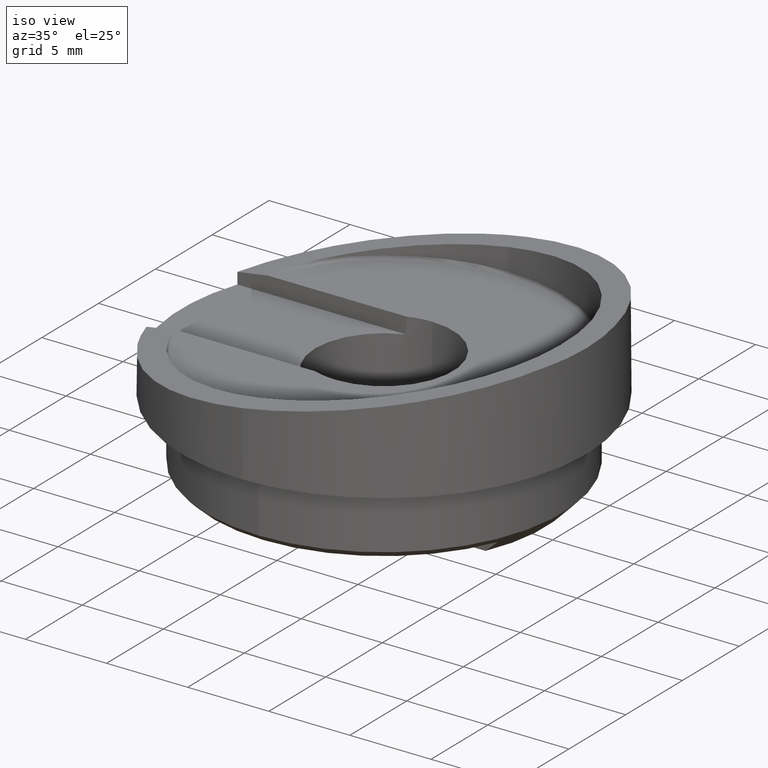
[diagram: clean part render]
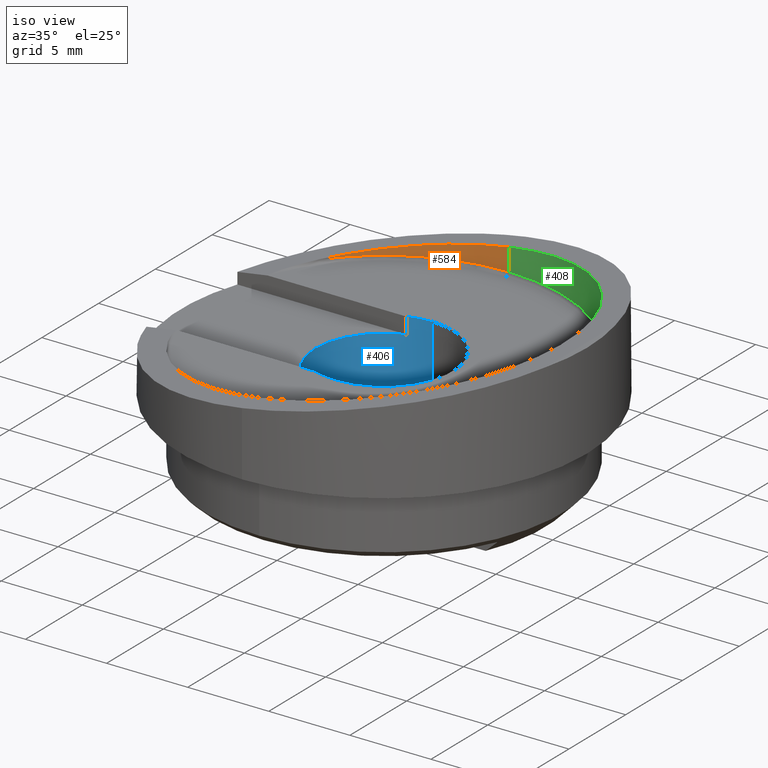
[diagram: same view with three faces highlighted in distinct colors, each labeled with its STEP entity id]
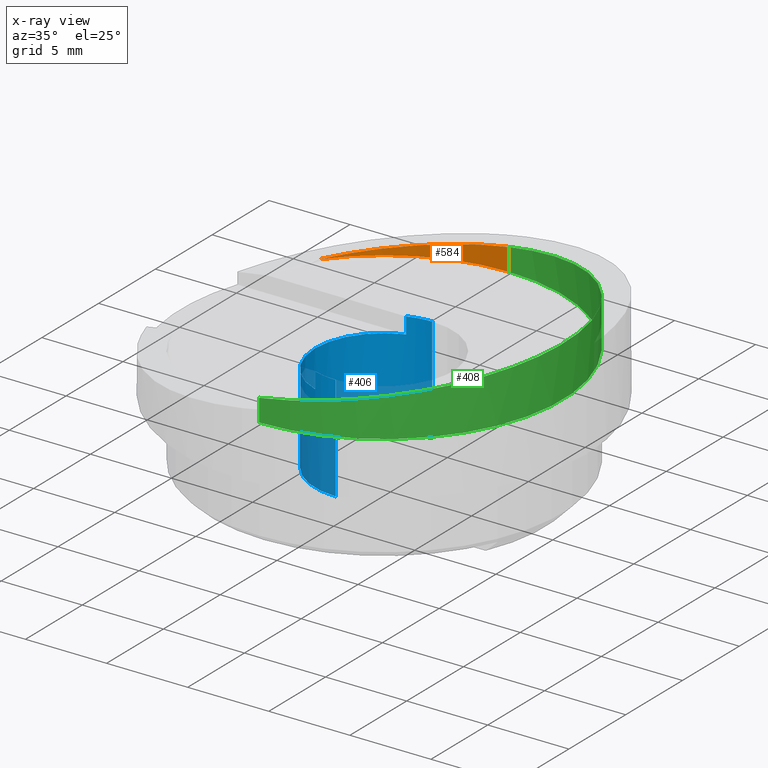
[diagram: x-ray of the same camera — body ghosted, the three highlighted faces saturated]
A machine part, iso view with three faces highlighted in distinct colors.
The next image is the same camera in x-ray (body ghosted, the three faces saturated) — at least one of them is partly hidden behind the body in this view.
Their STEP definitions:

[orange] entity #584 — the highlighted cylindrical surface (partial cylindrical patch) has radius 11 mm, axis along (-0, 0, -1).
#13 = DIRECTION ( 'NONE',  ( -1.000000000000000000, 1.109335647967048500E-031, 1.232595164407831800E-032 ) ) ;
#16 = DIRECTION ( 'NONE',  ( 0.0000000000000000000, -4.622231866529396200E-033, 1.000000000000000000 ) ) ;
#30 = CARTESIAN_POINT ( 'NONE',  ( -34.06605724148839400, 0.0000000000000000000, -2.958228394578794300E-028 ) ) ;
#40 = ORIENTED_EDGE ( 'NONE', *, *, #1031, .T. ) ;
#93 = VECTOR ( 'NONE', #296, 1000.000000000000000 ) ;
#118 =( BOUNDED_CURVE ( )  B_SPLINE_CURVE ( 3, ( #954, #935, #962, #964 ),
 .UNSPECIFIED., .F., .F. ) 
 B_SPLINE_CURVE_WITH_KNOTS ( ( 4, 4 ),
 ( 4.712388980384689700, 5.626429581987388900 ),
 .UNSPECIFIED. ) 
 CURVE ( )  GEOMETRIC_REPRESENTATION_ITEM ( )  RATIONAL_B_SPLINE_CURVE ( ( 1.000000000000000000, 0.9315808996936155700, 0.9315808996936155700, 1.000000000000000000 ) ) 
 REPRESENTATION_ITEM ( '' )  );
#121 = CARTESIAN_POINT ( 'NONE',  ( 6.699999999999997500, 0.0000000000000000000, 0.0000000000000000000 ) ) ;
#125 = DIRECTION ( 'NONE',  ( -1.000000000000000000, 1.109335647967048500E-031, 1.232595164407831800E-032 ) ) ;
#133 = DIRECTION ( 'NONE',  ( 0.0000000000000000000, -4.622231866529395500E-033, 1.000000000000000000 ) ) ;
#163 = VERTEX_POINT ( 'NONE', #887 ) ;
#282 = ORIENTED_EDGE ( 'NONE', *, *, #896, .F. ) ;
#296 = DIRECTION ( 'NONE',  ( -1.000000000000000000, 1.109335647967048500E-031, 1.232595164407831800E-032 ) ) ;
#325 = CARTESIAN_POINT ( 'NONE',  ( -34.06605724148839400, 1.347111479062087600E-015, -11.00000000000000000 ) ) ;
#336 = VERTEX_POINT ( 'NONE', #1042 ) ;
#544 = VERTEX_POINT ( 'NONE', #793 ) ;
#584 = ADVANCED_FACE ( 'NONE', ( #722 ), #1099, .F. ) ;
#658 = AXIS2_PLACEMENT_3D ( 'NONE', #121, #125, #133 ) ;
#666 = AXIS2_PLACEMENT_3D ( 'NONE', #30, #13, #16 ) ;
#703 = EDGE_CURVE ( 'NONE', #544, #163, #911, .T. ) ;
#722 = FACE_OUTER_BOUND ( 'NONE', #864, .T. ) ;
#773 = ORIENTED_EDGE ( 'NONE', *, *, #703, .T. ) ;
#793 = CARTESIAN_POINT ( 'NONE',  ( 6.699999999999997500, 8.711749091194855400, -6.716057457472022200 ) ) ;
#864 = EDGE_LOOP ( 'NONE', ( #282, #40, #773 ) ) ;
#887 = CARTESIAN_POINT ( 'NONE',  ( 6.699999999999997500, 1.347111479062087200E-015, -10.99999999999999800 ) ) ;
#896 = EDGE_CURVE ( 'NONE', #336, #163, #898, .T. ) ;
#898 = LINE ( 'NONE', #325, #93 ) ;
#911 = CIRCLE ( 'NONE', #658, 10.99999999999999800 ) ;
#935 = CARTESIAN_POINT ( 'NONE',  ( 7.529626715030928200, 3.473692162553156000, -10.99999999999999300 ) ) ;
#954 = CARTESIAN_POINT ( 'NONE',  ( 8.079805504056615500, 1.347111479062083100E-015, -11.00000000000000000 ) ) ;
#962 = CARTESIAN_POINT ( 'NONE',  ( 7.035912032634432700, 6.590883986351474100, -9.467142415673210500 ) ) ;
#964 = CARTESIAN_POINT ( 'NONE',  ( 6.699999999999997500, 8.711749091194855400, -6.716057457472022200 ) ) ;
#1031 = EDGE_CURVE ( 'NONE', #336, #544, #118, .T. ) ;
#1042 = CARTESIAN_POINT ( 'NONE',  ( 8.079805504056615500, 1.347111479062083100E-015, -11.00000000000000000 ) ) ;
#1099 = CYLINDRICAL_SURFACE ( 'NONE', #666, 11.00000000000000000 ) ;

[blue] entity #406 — the highlighted cylindrical surface (partial cylindrical patch) has radius 4.25 mm, axis along (-0, 0, -1).
#5 = DIRECTION ( 'NONE',  ( 0.0000000000000000000, -4.622231866529395500E-033, 1.000000000000000000 ) ) ;
#17 = VERTEX_POINT ( 'NONE', #258 ) ;
#19 = CARTESIAN_POINT ( 'NONE',  ( 5.238529448733278200E-032, -4.159247739388949700E-030, 4.250000000000000000 ) ) ;
#89 = VECTOR ( 'NONE', #955, 1000.000000000000000 ) ;
#102 = VERTEX_POINT ( 'NONE', #869 ) ;
#112 = DIRECTION ( 'NONE',  ( 0.0000000000000000000, -4.622231866529395500E-033, 1.000000000000000000 ) ) ;
#116 = CARTESIAN_POINT ( 'NONE',  ( 6.499999999999999100, 1.436140661634513400, 4.000000000000000000 ) ) ;
#132 = ORIENTED_EDGE ( 'NONE', *, *, #428, .T. ) ;
#159 = VERTEX_POINT ( 'NONE', #976 ) ;
#181 = ORIENTED_EDGE ( 'NONE', *, *, #1027, .T. ) ;
#182 = CARTESIAN_POINT ( 'NONE',  ( -34.06605724148839400, 0.0000000000000000000, -2.958228394578794300E-028 ) ) ;
#188 = ORIENTED_EDGE ( 'NONE', *, *, #373, .F. ) ;
#195 = LINE ( 'NONE', #685, #355 ) ;
#221 = LINE ( 'NONE', #981, #1073 ) ;
#235 = VERTEX_POINT ( 'NONE', #275 ) ;
#243 = CARTESIAN_POINT ( 'NONE',  ( -34.06605724148839400, 1.436140661634506500, -4.000000000000000000 ) ) ;
#246 = DIRECTION ( 'NONE',  ( -1.000000000000000000, 1.109335647967048500E-031, 1.232595164407831800E-032 ) ) ;
#258 = CARTESIAN_POINT ( 'NONE',  ( 6.499999999999999100, 5.204748896376207300E-016, -4.250000000000000000 ) ) ;
#275 = CARTESIAN_POINT ( 'NONE',  ( 6.499999999999999100, 1.436140661634506500, -4.000000000000000000 ) ) ;
#280 = ORIENTED_EDGE ( 'NONE', *, *, #1050, .T. ) ;
#281 = DIRECTION ( 'NONE',  ( -1.000000000000000000, 1.109335647967048500E-031, 1.232595164407831800E-032 ) ) ;
#311 = VERTEX_POINT ( 'NONE', #581 ) ;
#327 = CARTESIAN_POINT ( 'NONE',  ( 6.499999999999999100, 0.0000000000000000000, -2.958228394578794300E-028 ) ) ;
#337 = DIRECTION ( 'NONE',  ( -1.000000000000000000, 1.109335647967048500E-031, 1.232595164407831800E-032 ) ) ;
#340 = DIRECTION ( 'NONE',  ( 0.0000000000000000000, -4.622231866529395500E-033, 1.000000000000000000 ) ) ;
#349 = CIRCLE ( 'NONE', #724, 4.250000000000000000 ) ;
#355 = VECTOR ( 'NONE', #691, 1000.000000000000000 ) ;
#373 = EDGE_CURVE ( 'NONE', #417, #718, #817, .T. ) ;
#393 = ORIENTED_EDGE ( 'NONE', *, *, #996, .F. ) ;
#406 = ADVANCED_FACE ( 'NONE', ( #558 ), #1103, .F. ) ;
#417 = VERTEX_POINT ( 'NONE', #1000 ) ;
#428 = EDGE_CURVE ( 'NONE', #563, #159, #349, .T. ) ;
#433 = VECTOR ( 'NONE', #246, 1000.000000000000000 ) ;
#435 = AXIS2_PLACEMENT_3D ( 'NONE', #1107, #1096, #1089 ) ;
#442 = ORIENTED_EDGE ( 'NONE', *, *, #1047, .T. ) ;
#452 = CIRCLE ( 'NONE', #435, 4.250000000000000000 ) ;
#479 = CARTESIAN_POINT ( 'NONE',  ( 0.0000000000000000000, 0.0000000000000000000, 0.0000000000000000000 ) ) ;
#480 = ORIENTED_EDGE ( 'NONE', *, *, #863, .T. ) ;
#496 = CIRCLE ( 'NONE', #573, 4.250000000000000000 ) ;
#540 = DIRECTION ( 'NONE',  ( -1.000000000000000000, 1.109335647967048500E-031, 1.232595164407831800E-032 ) ) ;
#558 = FACE_OUTER_BOUND ( 'NONE', #857, .T. ) ;
#563 = VERTEX_POINT ( 'NONE', #19 ) ;
#573 = AXIS2_PLACEMENT_3D ( 'NONE', #327, #337, #340 ) ;
#581 = CARTESIAN_POINT ( 'NONE',  ( 5.499999999999998200, 1.436140661634506500, -4.000000000000000000 ) ) ;
#656 = CARTESIAN_POINT ( 'NONE',  ( 6.499999999999999100, 0.0000000000000000000, -2.958228394578794300E-028 ) ) ;
#685 = CARTESIAN_POINT ( 'NONE',  ( -34.06605724148839400, 5.204748896376248700E-016, -4.250000000000000000 ) ) ;
#691 = DIRECTION ( 'NONE',  ( -1.000000000000000000, 1.109335647967048500E-031, 1.232595164407831800E-032 ) ) ;
#713 = AXIS2_PLACEMENT_3D ( 'NONE', #182, #281, #112 ) ;
#715 = DIRECTION ( 'NONE',  ( 0.0000000000000000000, 4.622231866529395500E-033, -1.000000000000000000 ) ) ;
#718 = VERTEX_POINT ( 'NONE', #116 ) ;
#724 = AXIS2_PLACEMENT_3D ( 'NONE', #479, #540, #715 ) ;
#749 = AXIS2_PLACEMENT_3D ( 'NONE', #656, #1033, #5 ) ;
#817 = CIRCLE ( 'NONE', #749, 4.250000000000000000 ) ;
#833 = LINE ( 'NONE', #953, #89 ) ;
#857 = EDGE_LOOP ( 'NONE', ( #393, #926, #480, #442, #181, #188, #280, #132 ) ) ;
#863 = EDGE_CURVE ( 'NONE', #235, #311, #1043, .T. ) ;
#869 = CARTESIAN_POINT ( 'NONE',  ( 5.499999999999998200, 1.436140661634513400, 4.000000000000000000 ) ) ;
#891 = EDGE_CURVE ( 'NONE', #235, #17, #496, .T. ) ;
#926 = ORIENTED_EDGE ( 'NONE', *, *, #891, .F. ) ;
#953 = CARTESIAN_POINT ( 'NONE',  ( -34.06605724148839400, 1.436140661634527400, 4.000000000000000000 ) ) ;
#955 = DIRECTION ( 'NONE',  ( 1.000000000000000000, -1.109335647967048500E-031, -1.232595164407831800E-032 ) ) ;
#976 = CARTESIAN_POINT ( 'NONE',  ( -5.238529448733272800E-032, 5.204748896376207300E-016, -4.250000000000000000 ) ) ;
#978 = DIRECTION ( 'NONE',  ( -1.000000000000000000, 1.109335647967048500E-031, 1.232595164407831800E-032 ) ) ;
#981 = CARTESIAN_POINT ( 'NONE',  ( -34.06605724148839400, -1.964448543274993200E-032, 4.250000000000000000 ) ) ;
#996 = EDGE_CURVE ( 'NONE', #17, #159, #195, .T. ) ;
#1000 = CARTESIAN_POINT ( 'NONE',  ( 6.499999999999999100, -4.159247739388950400E-030, 4.250000000000000000 ) ) ;
#1027 = EDGE_CURVE ( 'NONE', #102, #718, #833, .T. ) ;
#1033 = DIRECTION ( 'NONE',  ( -1.000000000000000000, 1.109335647967048500E-031, 1.232595164407831800E-032 ) ) ;
#1043 = LINE ( 'NONE', #243, #433 ) ;
#1047 = EDGE_CURVE ( 'NONE', #311, #102, #452, .T. ) ;
#1050 = EDGE_CURVE ( 'NONE', #417, #563, #221, .T. ) ;
#1073 = VECTOR ( 'NONE', #978, 1000.000000000000000 ) ;
#1089 = DIRECTION ( 'NONE',  ( 0.0000000000000000000, -4.622231866529395500E-033, 1.000000000000000000 ) ) ;
#1096 = DIRECTION ( 'NONE',  ( 1.000000000000000000, -1.109335647967048500E-031, -1.232595164407831800E-032 ) ) ;
#1103 = CYLINDRICAL_SURFACE ( 'NONE', #713, 4.250000000000000000 ) ;
#1107 = CARTESIAN_POINT ( 'NONE',  ( 5.499999999999998200, 0.0000000000000000000, 0.0000000000000000000 ) ) ;

[green] entity #408 — the highlighted cylindrical surface (partial cylindrical patch) has radius 11 mm, axis along (-0, 0, -1).
#44 = FACE_OUTER_BOUND ( 'NONE', #88, .T. ) ;
#88 = EDGE_LOOP ( 'NONE', ( #605, #117, #253, #351 ) ) ;
#93 = VECTOR ( 'NONE', #296, 1000.000000000000000 ) ;
#117 = ORIENTED_EDGE ( 'NONE', *, *, #896, .T. ) ;
#131 = VERTEX_POINT ( 'NONE', #868 ) ;
#144 = CARTESIAN_POINT ( 'NONE',  ( -34.06605724148839400, -5.084455053182335500E-032, 11.00000000000000000 ) ) ;
#150 = DIRECTION ( 'NONE',  ( -1.000000000000000000, 1.109335647967048500E-031, 1.232595164407831800E-032 ) ) ;
#161 = DIRECTION ( 'NONE',  ( 0.0000000000000000000, -4.622231866529396200E-033, 1.000000000000000000 ) ) ;
#163 = VERTEX_POINT ( 'NONE', #887 ) ;
#253 = ORIENTED_EDGE ( 'NONE', *, *, #967, .T. ) ;
#290 = CARTESIAN_POINT ( 'NONE',  ( 11.56426319119626300, -22.00000000000000000, 10.99999999999998900 ) ) ;
#296 = DIRECTION ( 'NONE',  ( -1.000000000000000000, 1.109335647967048500E-031, 1.232595164407831800E-032 ) ) ;
#310 = VERTEX_POINT ( 'NONE', #627 ) ;
#315 =( BOUNDED_CURVE ( )  B_SPLINE_CURVE ( 3, ( #342, #290, #350, #356 ),
 .UNSPECIFIED., .F., .F. ) 
 B_SPLINE_CURVE_WITH_KNOTS ( ( 4, 4 ),
 ( 1.570796326794896800, 4.712388980384689700 ),
 .UNSPECIFIED. ) 
 CURVE ( )  GEOMETRIC_REPRESENTATION_ITEM ( )  RATIONAL_B_SPLINE_CURVE ( ( 1.000000000000000000, 0.3333333333333333700, 0.3333333333333333700, 1.000000000000000000 ) ) 
 REPRESENTATION_ITEM ( '' )  );
#325 = CARTESIAN_POINT ( 'NONE',  ( -34.06605724148839400, 1.347111479062087600E-015, -11.00000000000000000 ) ) ;
#336 = VERTEX_POINT ( 'NONE', #1042 ) ;
#342 = CARTESIAN_POINT ( 'NONE',  ( 8.079805504056615500, -4.726235346327770000E-030, 11.00000000000000000 ) ) ;
#350 = CARTESIAN_POINT ( 'NONE',  ( 11.56426319119626300, -22.00000000000000000, -10.99999999999998900 ) ) ;
#351 = ORIENTED_EDGE ( 'NONE', *, *, #757, .F. ) ;
#356 = CARTESIAN_POINT ( 'NONE',  ( 8.079805504056615500, 1.347111479062083100E-015, -11.00000000000000000 ) ) ;
#369 = DIRECTION ( 'NONE',  ( -1.000000000000000000, 1.109335647967048500E-031, 1.232595164407831800E-032 ) ) ;
#408 = ADVANCED_FACE ( 'NONE', ( #44 ), #645, .F. ) ;
#454 = CIRCLE ( 'NONE', #488, 10.99999999999999800 ) ;
#488 = AXIS2_PLACEMENT_3D ( 'NONE', #700, #673, #661 ) ;
#605 = ORIENTED_EDGE ( 'NONE', *, *, #901, .T. ) ;
#606 = LINE ( 'NONE', #144, #860 ) ;
#618 = CARTESIAN_POINT ( 'NONE',  ( -34.06605724148839400, 0.0000000000000000000, -2.958228394578794300E-028 ) ) ;
#627 = CARTESIAN_POINT ( 'NONE',  ( 6.699999999999997500, -5.084455053182337700E-032, 10.99999999999999800 ) ) ;
#645 = CYLINDRICAL_SURFACE ( 'NONE', #699, 11.00000000000000000 ) ;
#661 = DIRECTION ( 'NONE',  ( 0.0000000000000000000, -4.622231866529395500E-033, 1.000000000000000000 ) ) ;
#673 = DIRECTION ( 'NONE',  ( -1.000000000000000000, 1.109335647967048500E-031, 1.232595164407831800E-032 ) ) ;
#699 = AXIS2_PLACEMENT_3D ( 'NONE', #618, #369, #161 ) ;
#700 = CARTESIAN_POINT ( 'NONE',  ( 6.699999999999997500, 0.0000000000000000000, 0.0000000000000000000 ) ) ;
#757 = EDGE_CURVE ( 'NONE', #131, #310, #606, .T. ) ;
#860 = VECTOR ( 'NONE', #150, 1000.000000000000000 ) ;
#868 = CARTESIAN_POINT ( 'NONE',  ( 8.079805504056615500, -4.726235346327770000E-030, 11.00000000000000000 ) ) ;
#887 = CARTESIAN_POINT ( 'NONE',  ( 6.699999999999997500, 1.347111479062087200E-015, -10.99999999999999800 ) ) ;
#896 = EDGE_CURVE ( 'NONE', #336, #163, #898, .T. ) ;
#898 = LINE ( 'NONE', #325, #93 ) ;
#901 = EDGE_CURVE ( 'NONE', #131, #336, #315, .T. ) ;
#967 = EDGE_CURVE ( 'NONE', #163, #310, #454, .T. ) ;
#1042 = CARTESIAN_POINT ( 'NONE',  ( 8.079805504056615500, 1.347111479062083100E-015, -11.00000000000000000 ) ) ;